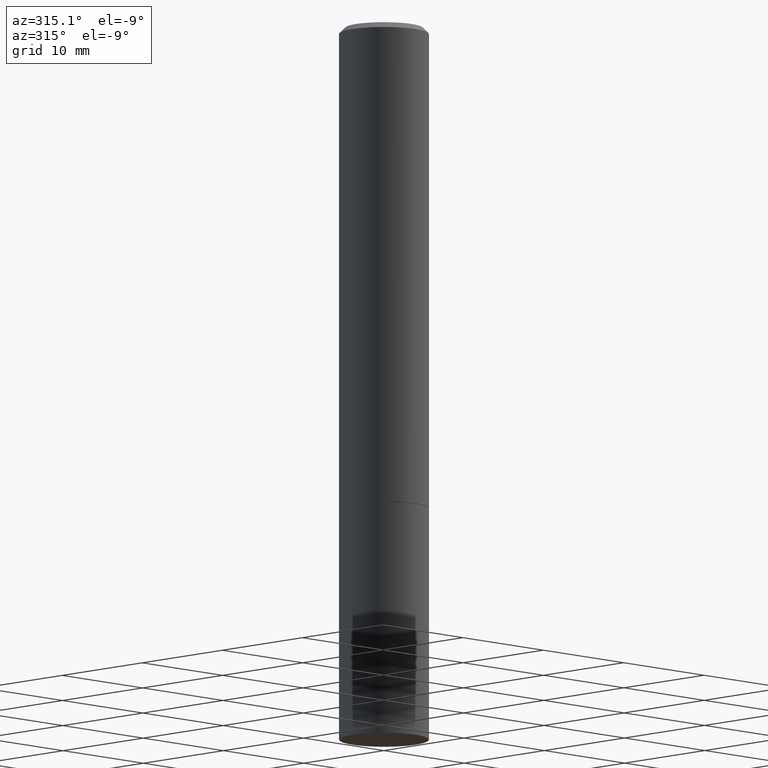
[diagram: clean part render]
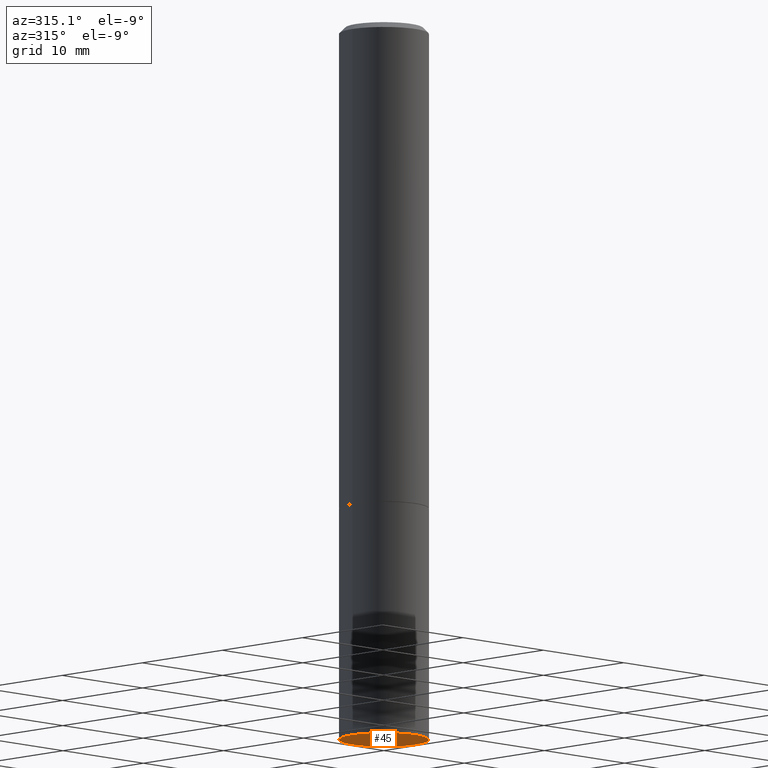
[diagram: same view with one face highlighted and labeled with its STEP entity id]
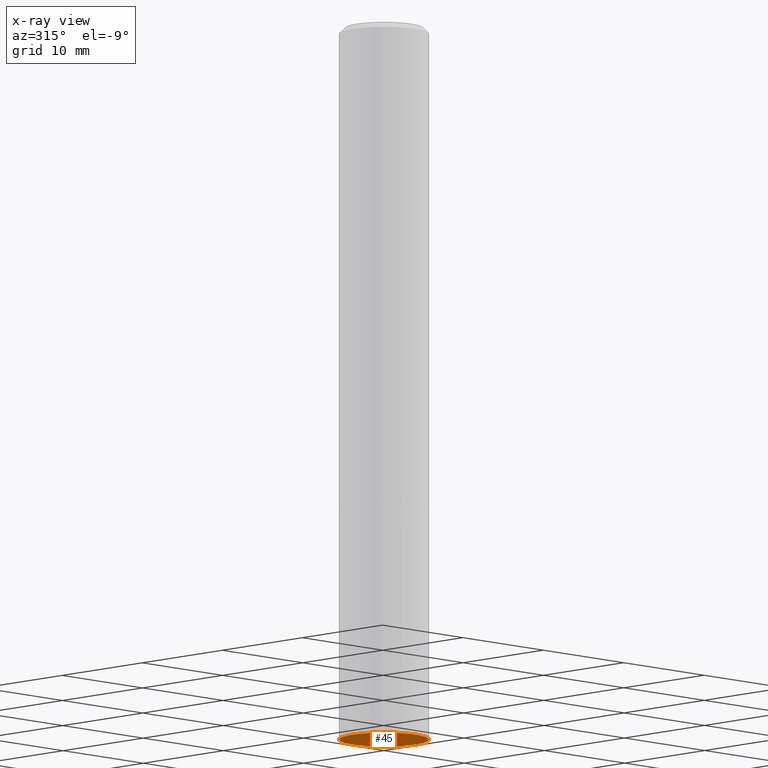
[diagram: x-ray of the same camera — body ghosted, the highlighted face saturated]
A machine part, auxiliary view. The second image highlights one B-rep face of the part: STEP entity #45.
The next image is the same camera in x-ray: the body ghosted, the highlighted face saturated — about 0% of this face is hidden behind the body in this view.
In plain terms, the highlighted planar face has unit normal (0, -0, -1).
Its self-contained STEP definition (entity closure, byte-faithful):
#33 = DIRECTION ( 'NONE',  ( -2.445468806185136597E-29, 3.491481338843145583E-15, 1.000000000000000000 ) ) ;
#42 = DIRECTION ( 'NONE',  ( -1.000000000000000000, 6.982962677686265922E-15, -4.876176775795935793E-29 ) ) ;
#45 = ADVANCED_FACE ( 'NONE', ( #242 ), #128, .T. ) ;
#65 = DIRECTION ( 'NONE',  ( 2.438088387897960049E-29, -3.491481338843145188E-15, -1.000000000000000000 ) ) ;
#68 = CARTESIAN_POINT ( 'NONE',  ( 1.091087918388540310E-15, 0.1562499999999912570, -2.500000000000000444 ) ) ;
#117 = DIRECTION ( 'NONE',  ( 1.000000000000000000, -6.982962677686269077E-15, 0.000000000000000000 ) ) ;
#120 = EDGE_CURVE ( 'NONE', #306, #356, #305, .T. ) ;
#127 = CARTESIAN_POINT ( 'NONE',  ( 0.1562500000000000000, -9.819791265496344905E-15, -2.500000000000000000 ) ) ;
#128 = PLANE ( 'NONE',  #289 ) ;
#138 = EDGE_CURVE ( 'NONE', #356, #306, #364, .T. ) ;
#144 = AXIS2_PLACEMENT_3D ( 'NONE', #202, #33, #204 ) ;
#173 = DIRECTION ( 'NONE',  ( -2.445468806185136597E-29, 3.491481338843145583E-15, 1.000000000000000000 ) ) ;
#190 = EDGE_LOOP ( 'NONE', ( #286, #270 ) ) ;
#202 = CARTESIAN_POINT ( 'NONE',  ( 6.113672015462842613E-29, -8.728703347107864943E-15, -2.500000000000000000 ) ) ;
#204 = DIRECTION ( 'NONE',  ( 1.000000000000000000, -6.982962677686269077E-15, 0.000000000000000000 ) ) ;
#242 = FACE_OUTER_BOUND ( 'NONE', #190, .T. ) ;
#259 = CARTESIAN_POINT ( 'NONE',  ( 6.113672015462842613E-29, -8.728703347107864943E-15, -2.500000000000000000 ) ) ;
#270 = ORIENTED_EDGE ( 'NONE', *, *, #120, .F. ) ;
#286 = ORIENTED_EDGE ( 'NONE', *, *, #138, .F. ) ;
#289 = AXIS2_PLACEMENT_3D ( 'NONE', #68, #65, #42 ) ;
#305 = CIRCLE ( 'NONE', #144, 0.1562500000000000000 ) ;
#306 = VERTEX_POINT ( 'NONE', #347 ) ;
#335 = AXIS2_PLACEMENT_3D ( 'NONE', #259, #173, #117 ) ;
#347 = CARTESIAN_POINT ( 'NONE',  ( -0.1562500000000000000, -6.200938898912389918E-15, -2.500000000000000000 ) ) ;
#356 = VERTEX_POINT ( 'NONE', #127 ) ;
#364 = CIRCLE ( 'NONE', #335, 0.1562500000000000000 ) ;